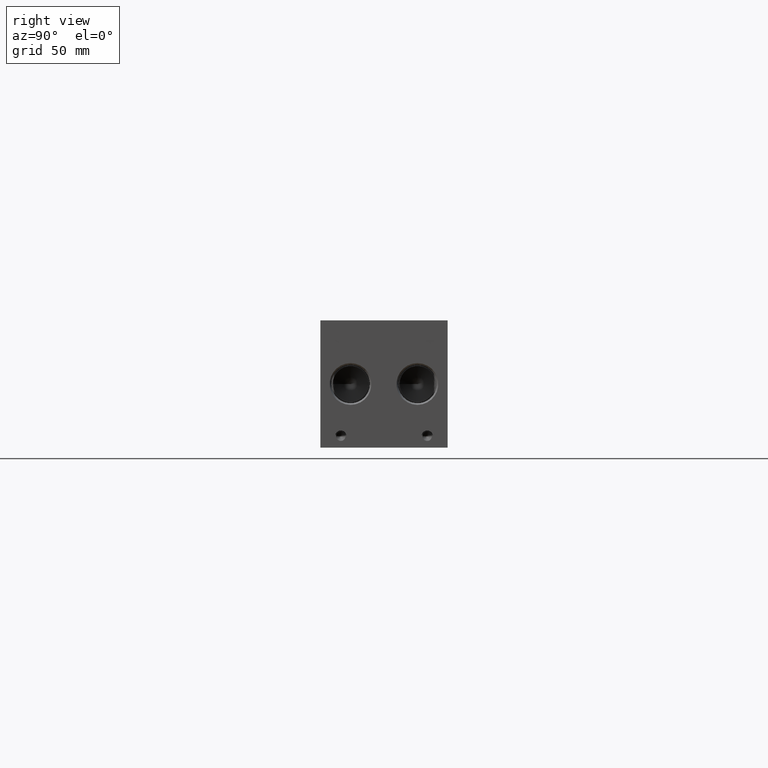
[diagram: clean part render]
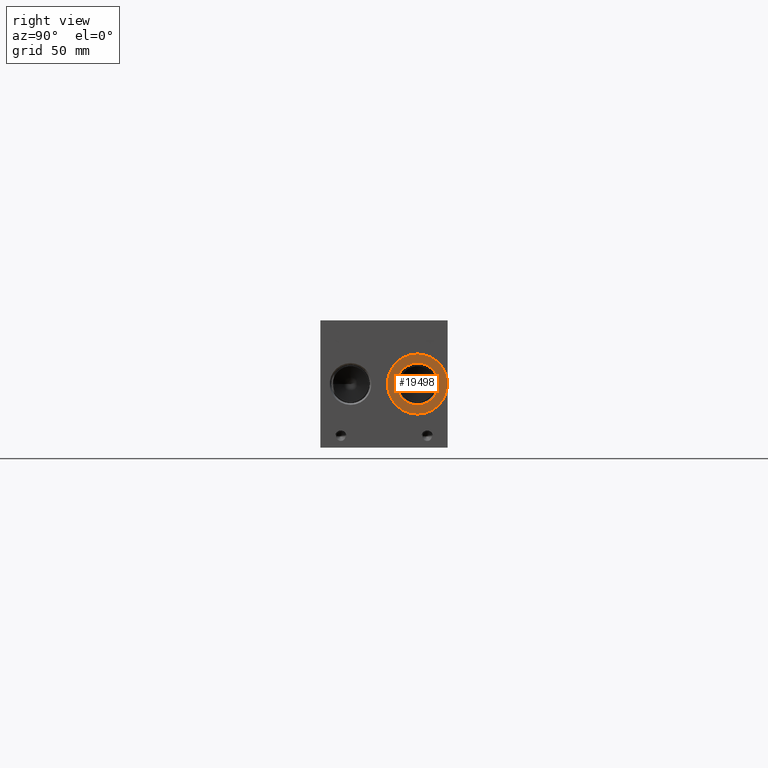
[diagram: same view with one face highlighted and labeled with its STEP entity id]
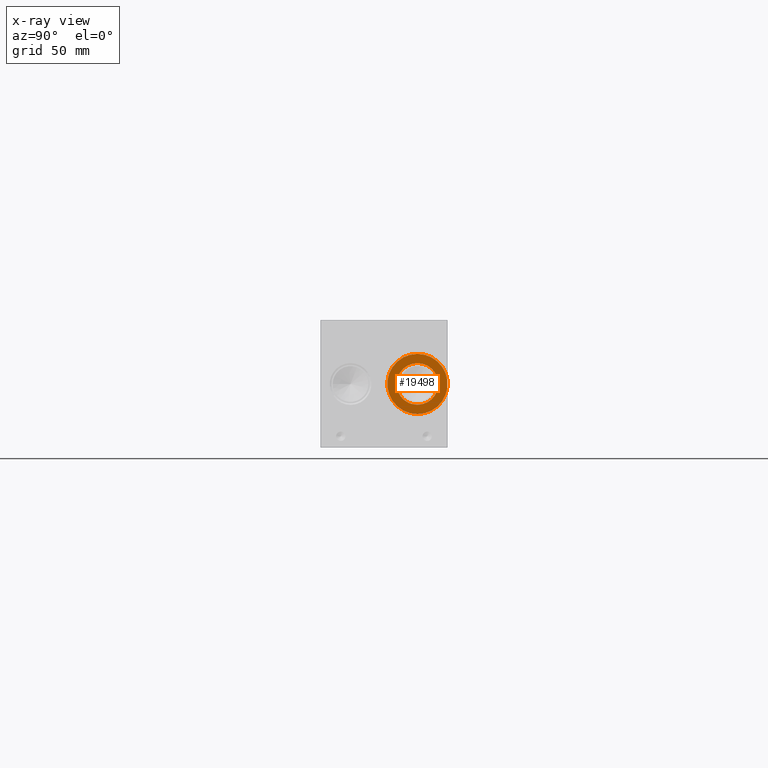
[diagram: x-ray of the same camera — body ghosted, the highlighted face saturated]
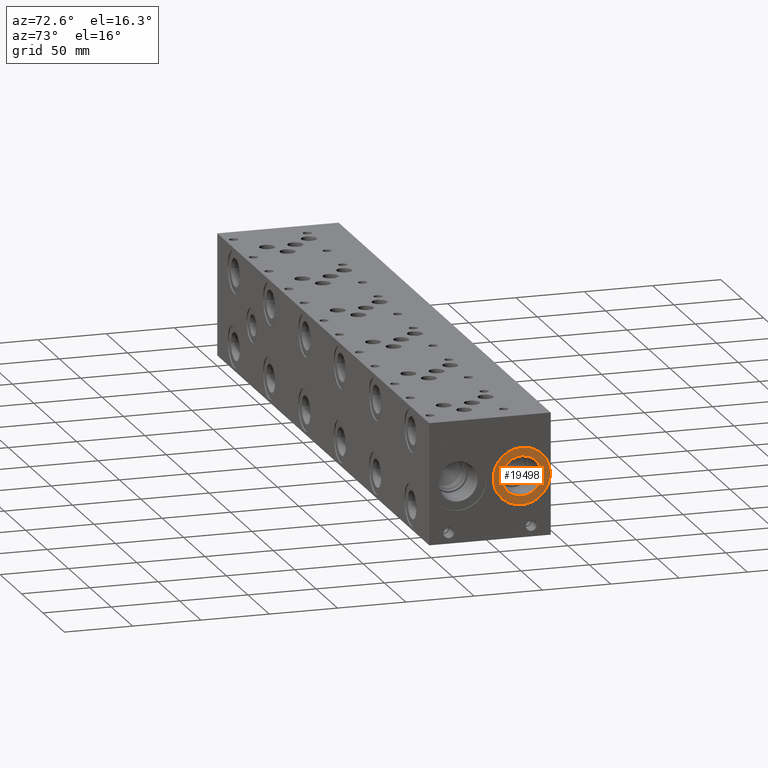
[diagram: same view with one face highlighted and labeled with its STEP entity id]
A machine part, right view. The second image highlights one B-rep face of the part: STEP entity #19498.
The next image is the same camera in x-ray: the body ghosted, the highlighted face saturated — about 0% of this face is hidden behind the body in this view.
A second angle (auxiliary view) of the same face is appended — the face is thin or edge-on in the first view.
In plain terms, the highlighted planar face has unit normal (-1, 0, 0).
Its self-contained STEP definition (entity closure, byte-faithful):
#378=CIRCLE('',#20373,21.0185);
#379=CIRCLE('',#20374,21.0185);
#380=CIRCLE('',#20376,14.5923);
#381=CIRCLE('',#20377,14.5923);
#1045=FACE_BOUND('',#3706,.T.);
#2577=FACE_OUTER_BOUND('',#3705,.T.);
#3705=EDGE_LOOP('',(#15880,#15881));
#3706=EDGE_LOOP('',(#15882,#15883));
#8721=VERTEX_POINT('',#32876);
#8722=VERTEX_POINT('',#32878);
#8723=VERTEX_POINT('',#32882);
#8724=VERTEX_POINT('',#32883);
#11272=EDGE_CURVE('',#8721,#8722,#378,.T.);
#11273=EDGE_CURVE('',#8722,#8721,#379,.T.);
#11274=EDGE_CURVE('',#8723,#8724,#380,.T.);
#11275=EDGE_CURVE('',#8724,#8723,#381,.T.);
#15880=ORIENTED_EDGE('',*,*,#11273,.F.);
#15881=ORIENTED_EDGE('',*,*,#11272,.F.);
#15882=ORIENTED_EDGE('',*,*,#11274,.T.);
#15883=ORIENTED_EDGE('',*,*,#11275,.T.);
#18100=PLANE('',#20375);
#19498=ADVANCED_FACE('',(#2577,#1045),#18100,.F.);
#20373=AXIS2_PLACEMENT_3D('',#32879,#23669,#23670);
#20374=AXIS2_PLACEMENT_3D('',#32880,#23671,#23672);
#20375=AXIS2_PLACEMENT_3D('',#32881,#23673,#23674);
#20376=AXIS2_PLACEMENT_3D('',#32884,#23675,#23676);
#20377=AXIS2_PLACEMENT_3D('',#32885,#23677,#23678);
#23669=DIRECTION('center_axis',(-1.,0.,0.));
#23670=DIRECTION('ref_axis',(0.,0.,1.));
#23671=DIRECTION('center_axis',(-1.,0.,0.));
#23672=DIRECTION('ref_axis',(0.,0.,1.));
#23673=DIRECTION('center_axis',(-1.,0.,0.));
#23674=DIRECTION('ref_axis',(0.,0.,1.));
#23675=DIRECTION('center_axis',(-1.,0.,0.));
#23676=DIRECTION('ref_axis',(0.,0.,1.));
#23677=DIRECTION('center_axis',(-1.,0.,0.));
#23678=DIRECTION('ref_axis',(0.,0.,1.));
#32876=CARTESIAN_POINT('',(494.5126,67.818,65.4685));
#32878=CARTESIAN_POINT('',(494.5126,67.818,23.4315));
#32879=CARTESIAN_POINT('Origin',(494.5126,67.818,44.45));
#32880=CARTESIAN_POINT('Origin',(494.5126,67.818,44.45));
#32881=CARTESIAN_POINT('Origin',(494.5126,67.818,29.8577));
#32882=CARTESIAN_POINT('',(494.5126,67.818,29.8577));
#32883=CARTESIAN_POINT('',(494.5126,67.818,59.0423));
#32884=CARTESIAN_POINT('Origin',(494.5126,67.818,44.45));
#32885=CARTESIAN_POINT('Origin',(494.5126,67.818,44.45));